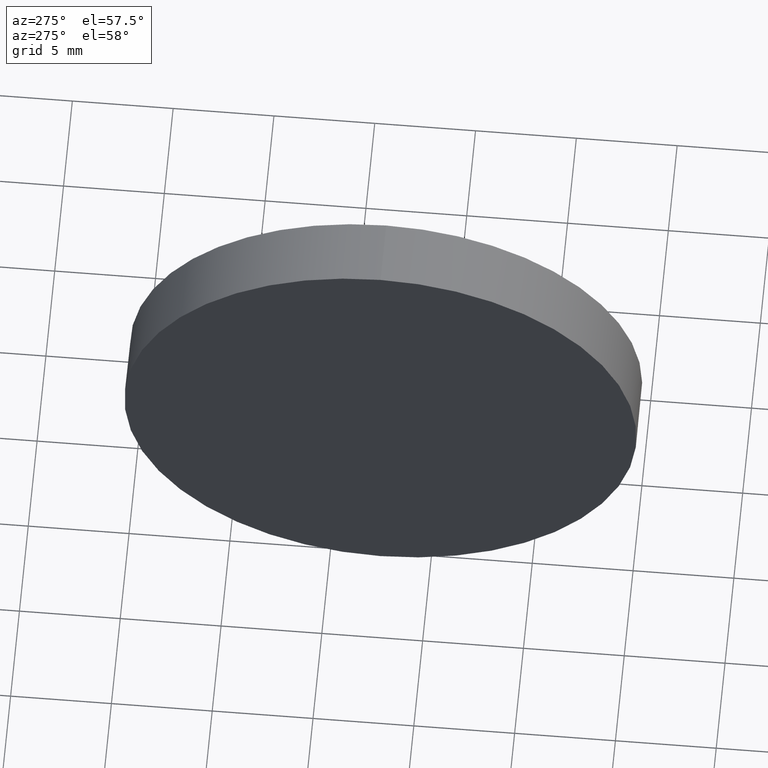
[diagram: clean part render]
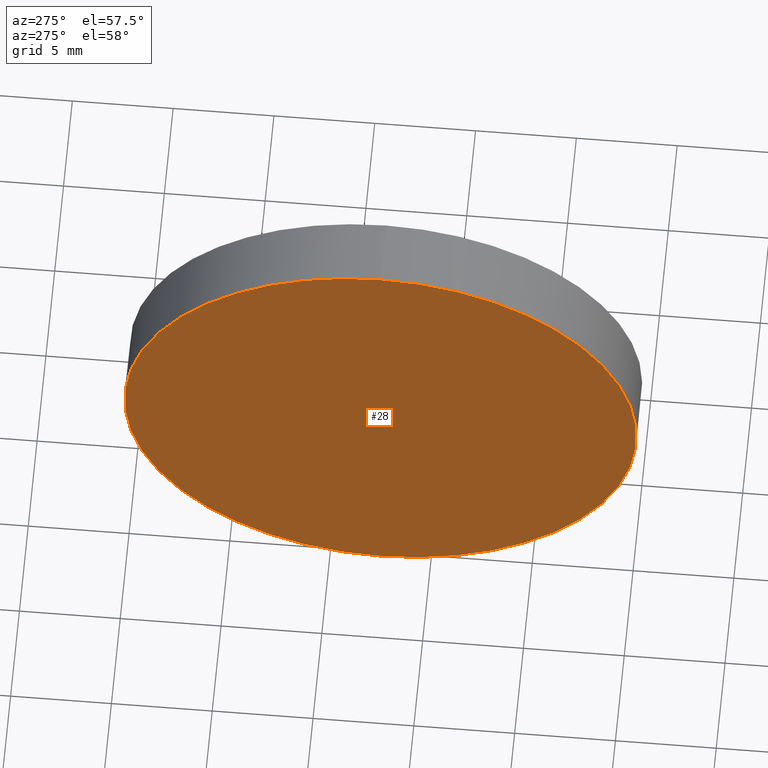
[diagram: same view with one face highlighted and labeled with its STEP entity id]
A machine part, auxiliary view. The second image highlights one B-rep face of the part: STEP entity #28.
In plain terms, the highlighted planar face has unit normal (1, 0, 0).
Its self-contained STEP definition (entity closure, byte-faithful):
#15 = PLANE ( 'NONE',  #165 ) ;
#16 = DIRECTION ( 'NONE',  ( 1.000000000000000000, 0.0000000000000000000, 0.0000000000000000000 ) ) ;
#27 = DIRECTION ( 'NONE',  ( 0.0000000000000000000, 0.0000000000000000000, 1.000000000000000000 ) ) ;
#28 = ADVANCED_FACE ( 'NONE', ( #185 ), #15, .F. ) ;
#39 = EDGE_CURVE ( 'NONE', #59, #55, #77, .T. ) ;
#41 = EDGE_LOOP ( 'NONE', ( #140, #56 ) ) ;
#48 = CARTESIAN_POINT ( 'NONE',  ( 479.4204890152489000, 287.4786788978059300, 0.0000000000000000000 ) ) ;
#55 = VERTEX_POINT ( 'NONE', #175 ) ;
#56 = ORIENTED_EDGE ( 'NONE', *, *, #39, .T. ) ;
#59 = VERTEX_POINT ( 'NONE', #103 ) ;
#62 = AXIS2_PLACEMENT_3D ( 'NONE', #93, #109, #27 ) ;
#63 = AXIS2_PLACEMENT_3D ( 'NONE', #48, #65, #119 ) ;
#65 = DIRECTION ( 'NONE',  ( -1.000000000000000000, -0.0000000000000000000, -0.0000000000000000000 ) ) ;
#77 = CIRCLE ( 'NONE', #63, 12.70000000000004500 ) ;
#93 = CARTESIAN_POINT ( 'NONE',  ( 479.4204890152489000, 287.4786788978059300, 0.0000000000000000000 ) ) ;
#96 = CIRCLE ( 'NONE', #62, 12.70000000000004500 ) ;
#103 = CARTESIAN_POINT ( 'NONE',  ( 479.4204890152489000, 287.4786788978059300, -12.70000000000004500 ) ) ;
#109 = DIRECTION ( 'NONE',  ( -1.000000000000000000, -0.0000000000000000000, -0.0000000000000000000 ) ) ;
#119 = DIRECTION ( 'NONE',  ( 0.0000000000000000000, 0.0000000000000000000, 1.000000000000000000 ) ) ;
#128 = DIRECTION ( 'NONE',  ( 0.0000000000000000000, 0.0000000000000000000, -1.000000000000000000 ) ) ;
#140 = ORIENTED_EDGE ( 'NONE', *, *, #162, .T. ) ;
#157 = CARTESIAN_POINT ( 'NONE',  ( 479.4204890152489000, 287.4786788978059300, 0.0000000000000000000 ) ) ;
#162 = EDGE_CURVE ( 'NONE', #55, #59, #96, .T. ) ;
#165 = AXIS2_PLACEMENT_3D ( 'NONE', #157, #16, #128 ) ;
#175 = CARTESIAN_POINT ( 'NONE',  ( 479.4204890152489000, 287.4786788978059300, 12.70000000000004500 ) ) ;
#185 = FACE_OUTER_BOUND ( 'NONE', #41, .T. ) ;